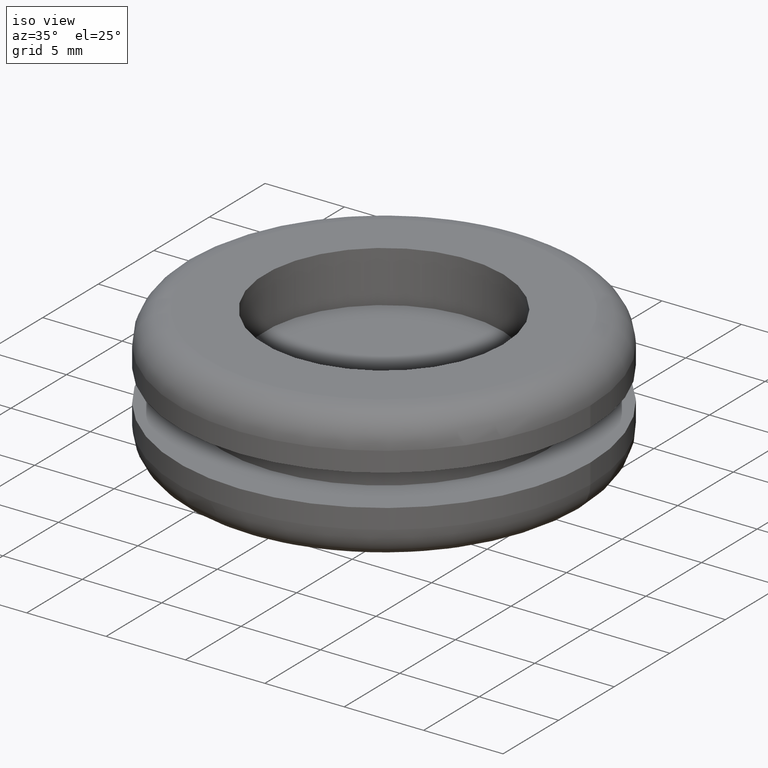
[diagram: clean part render]
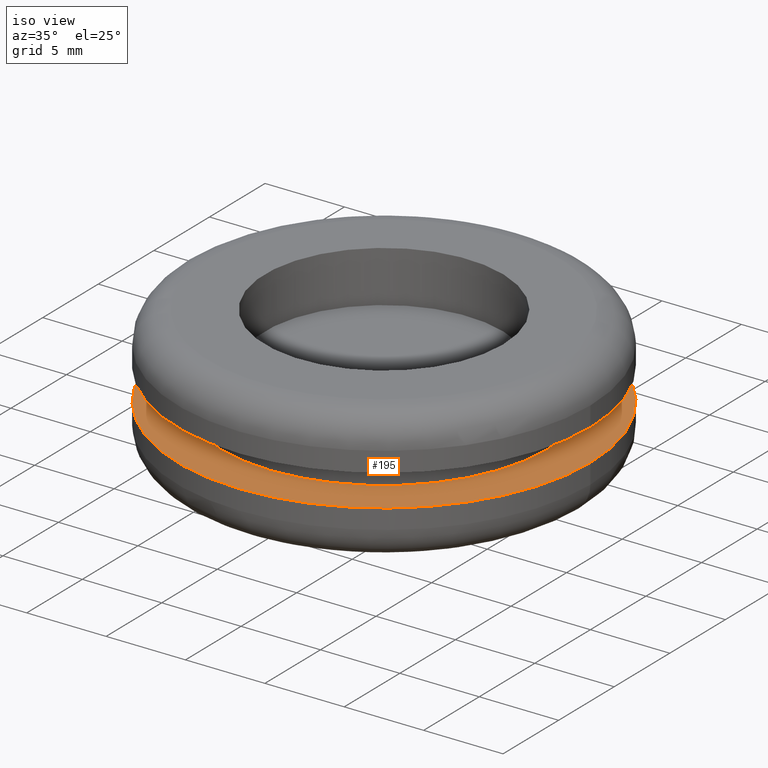
[diagram: same view with one face highlighted and labeled with its STEP entity id]
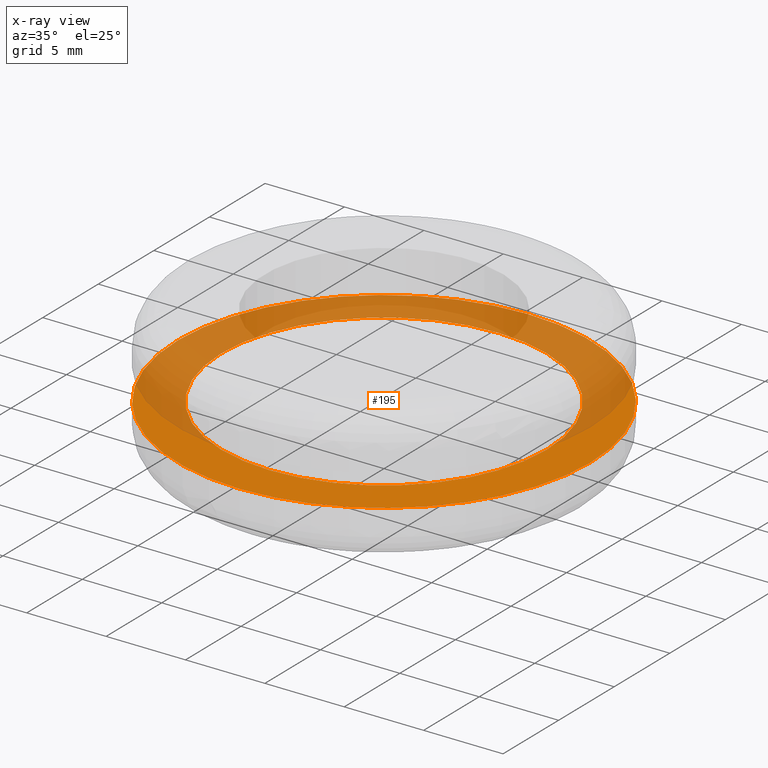
[diagram: x-ray of the same camera — body ghosted, the highlighted face saturated]
A machine part, iso view. The second image highlights one B-rep face of the part: STEP entity #195.
The next image is the same camera in x-ray: the body ghosted, the highlighted face saturated — about 55% of this face is hidden behind the body in this view.
In plain terms, the highlighted planar face has unit normal (0, 0, -1).
Its self-contained STEP definition (entity closure, byte-faithful):
#17=FACE_BOUND('',#62,.T.);
#46=FACE_OUTER_BOUND('',#61,.T.);
#61=EDGE_LOOP('',(#167,#168));
#62=EDGE_LOOP('',(#169,#170));
#73=CIRCLE('',#231,13.);
#74=CIRCLE('',#232,13.);
#82=CIRCLE('',#244,10.25);
#85=CIRCLE('',#247,10.25);
#92=VERTEX_POINT('',#345);
#93=VERTEX_POINT('',#346);
#100=VERTEX_POINT('',#368);
#101=VERTEX_POINT('',#369);
#112=EDGE_CURVE('',#92,#93,#73,.T.);
#114=EDGE_CURVE('',#93,#92,#74,.T.);
#123=EDGE_CURVE('',#100,#101,#82,.T.);
#127=EDGE_CURVE('',#101,#100,#85,.T.);
#167=ORIENTED_EDGE('',*,*,#112,.F.);
#168=ORIENTED_EDGE('',*,*,#114,.F.);
#169=ORIENTED_EDGE('',*,*,#123,.F.);
#170=ORIENTED_EDGE('',*,*,#127,.F.);
#183=PLANE('',#248);
#195=ADVANCED_FACE('',(#46,#17),#183,.F.);
#231=AXIS2_PLACEMENT_3D('',#347,#280,#281);
#232=AXIS2_PLACEMENT_3D('',#349,#283,#284);
#244=AXIS2_PLACEMENT_3D('',#370,#308,#309);
#247=AXIS2_PLACEMENT_3D('',#376,#315,#316);
#248=AXIS2_PLACEMENT_3D('',#377,#317,#318);
#280=DIRECTION('center_axis',(0.,0.,-1.));
#281=DIRECTION('ref_axis',(-1.,0.,0.));
#283=DIRECTION('center_axis',(0.,0.,-1.));
#284=DIRECTION('ref_axis',(-1.,0.,0.));
#308=DIRECTION('center_axis',(0.,0.,1.));
#309=DIRECTION('ref_axis',(1.,0.,0.));
#315=DIRECTION('center_axis',(0.,0.,1.));
#316=DIRECTION('ref_axis',(1.,0.,0.));
#317=DIRECTION('center_axis',(0.,0.,-1.));
#318=DIRECTION('ref_axis',(-1.,0.,0.));
#345=CARTESIAN_POINT('',(-13.,0.,-1.));
#346=CARTESIAN_POINT('',(13.,1.59204083889156E-15,-1.));
#347=CARTESIAN_POINT('Origin',(0.,0.,-1.));
#349=CARTESIAN_POINT('Origin',(0.,0.,-1.));
#368=CARTESIAN_POINT('',(-10.25,0.,-1.));
#369=CARTESIAN_POINT('',(10.25,1.25526296912604E-15,-1.));
#370=CARTESIAN_POINT('Origin',(0.,0.,-1.));
#376=CARTESIAN_POINT('Origin',(0.,0.,-1.));
#377=CARTESIAN_POINT('Origin',(-13.,0.,-1.));